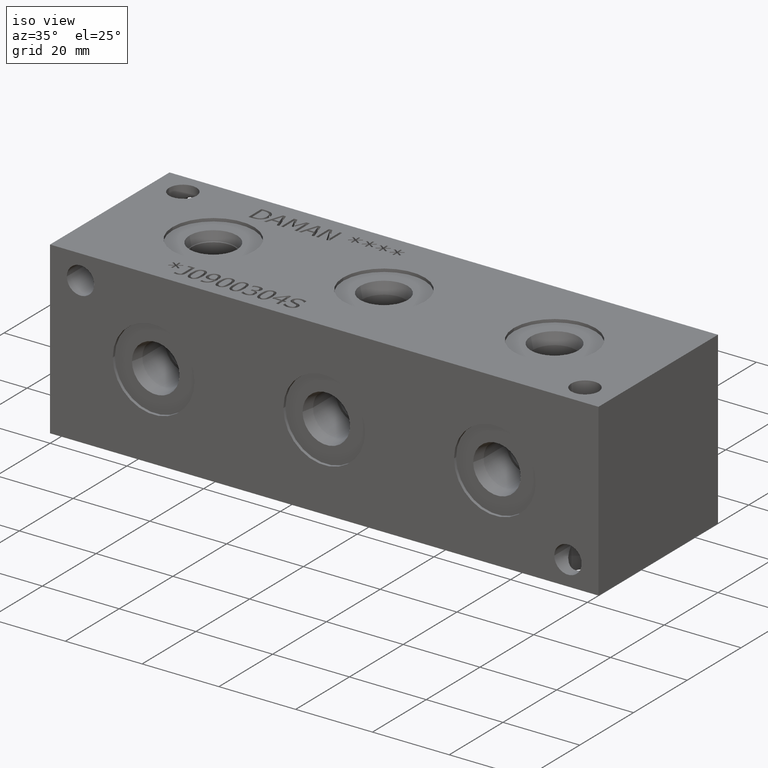
[diagram: clean part render]
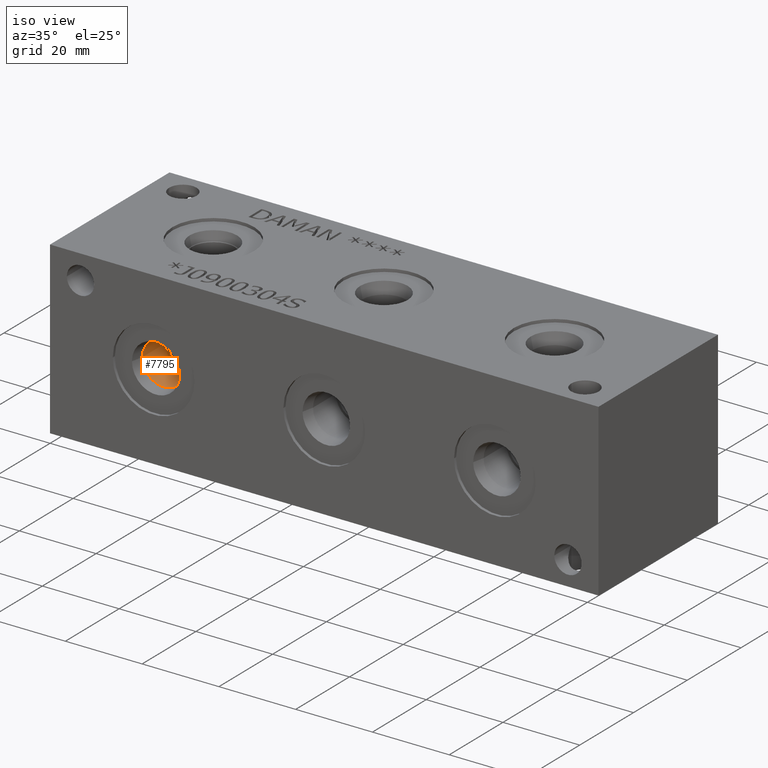
[diagram: same view with one face highlighted and labeled with its STEP entity id]
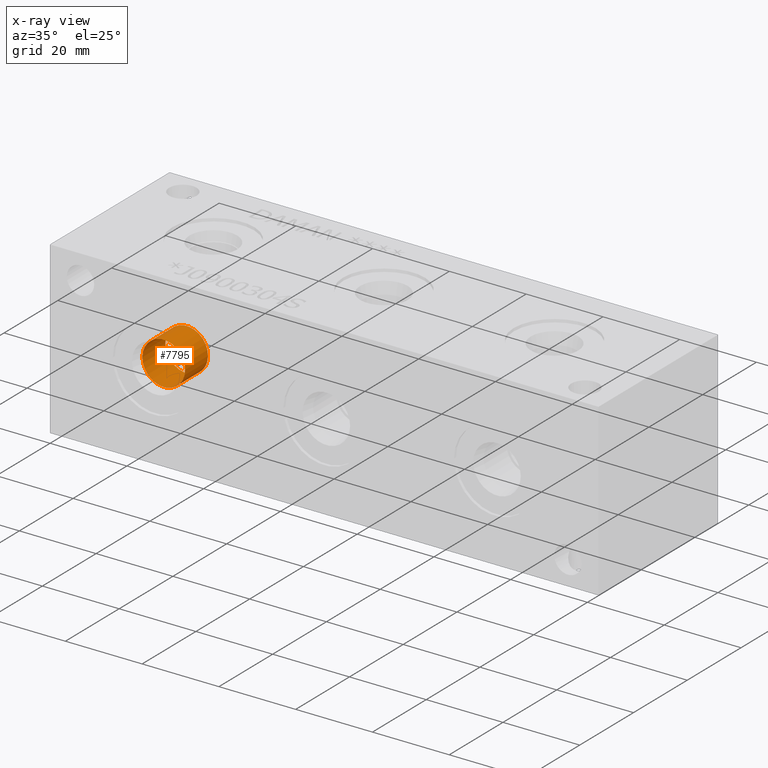
[diagram: x-ray of the same camera — body ghosted, the highlighted face saturated]
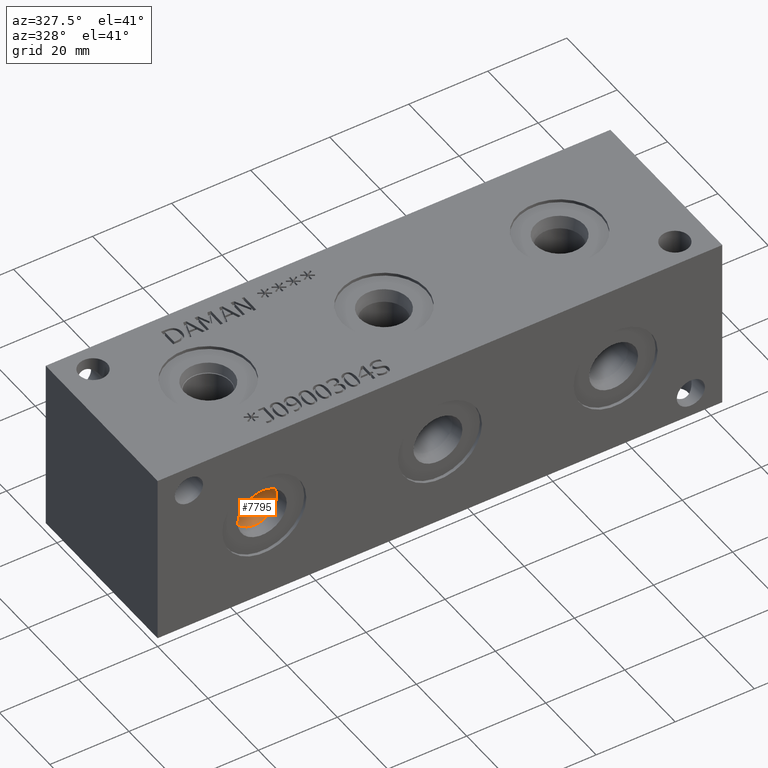
[diagram: same view with one face highlighted and labeled with its STEP entity id]
A machine part, iso view. The second image highlights one B-rep face of the part: STEP entity #7795.
The next image is the same camera in x-ray: the body ghosted, the highlighted face saturated — about 1% of this face is hidden behind the body in this view.
A second angle (auxiliary view) of the same face is appended — the face is thin or edge-on in the first view.
In plain terms, the highlighted cylindrical surface (bore or boss wall) has radius 5.5626 mm, axis along (0, -1, 0).
Its self-contained STEP definition (entity closure, byte-faithful):
#75=CYLINDRICAL_SURFACE('',#8141,5.5626);
#143=CIRCLE('',#8138,5.5626);
#144=CIRCLE('',#8139,5.5626);
#146=CIRCLE('',#8142,5.5626);
#828=FACE_OUTER_BOUND('',#1265,.T.);
#1265=EDGE_LOOP('',(#6686,#6687,#6688,#6689,#6690));
#2012=LINE('',#13301,#2732);
#2732=VECTOR('',#9497,5.5626);
#3654=VERTEX_POINT('',#13292);
#3655=VERTEX_POINT('',#13293);
#3657=VERTEX_POINT('',#13299);
#4690=EDGE_CURVE('',#3654,#3655,#143,.T.);
#4691=EDGE_CURVE('',#3655,#3654,#144,.T.);
#4693=EDGE_CURVE('',#3657,#3657,#146,.T.);
#4694=EDGE_CURVE('',#3657,#3655,#2012,.T.);
#6686=ORIENTED_EDGE('',*,*,#4693,.F.);
#6687=ORIENTED_EDGE('',*,*,#4694,.T.);
#6688=ORIENTED_EDGE('',*,*,#4690,.F.);
#6689=ORIENTED_EDGE('',*,*,#4691,.F.);
#6690=ORIENTED_EDGE('',*,*,#4694,.F.);
#7795=ADVANCED_FACE('',(#828),#75,.F.);
#8138=AXIS2_PLACEMENT_3D('',#13294,#9487,#9488);
#8139=AXIS2_PLACEMENT_3D('',#13295,#9489,#9490);
#8141=AXIS2_PLACEMENT_3D('',#13298,#9493,#9494);
#8142=AXIS2_PLACEMENT_3D('',#13300,#9495,#9496);
#9487=DIRECTION('center_axis',(0.,-1.,0.));
#9488=DIRECTION('ref_axis',(1.,0.,0.));
#9489=DIRECTION('center_axis',(0.,-1.,0.));
#9490=DIRECTION('ref_axis',(1.,0.,0.));
#9493=DIRECTION('center_axis',(0.,-1.,0.));
#9494=DIRECTION('ref_axis',(1.,0.,0.));
#9495=DIRECTION('center_axis',(0.,1.,0.));
#9496=DIRECTION('ref_axis',(1.,0.,0.));
#9497=DIRECTION('',(0.,1.,0.));
#13292=CARTESIAN_POINT('',(32.5374,12.2936,22.225));
#13293=CARTESIAN_POINT('',(21.4122,12.2936,22.225));
#13294=CARTESIAN_POINT('Origin',(26.9748,12.2936,22.225));
#13295=CARTESIAN_POINT('Origin',(26.9748,12.2936,22.225));
#13298=CARTESIAN_POINT('Origin',(26.9748,6.1468,22.225));
#13299=CARTESIAN_POINT('',(21.4122,3.77662011951882,22.225));
#13300=CARTESIAN_POINT('Origin',(26.9748,3.77662011951882,22.225));
#13301=CARTESIAN_POINT('',(21.4122,6.1468,22.225));